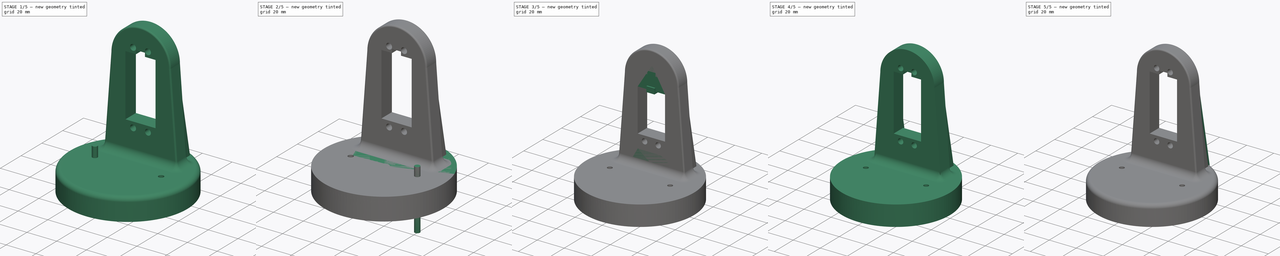
[diagram: build sequence overview — one tinted view per stage of 5, left to right]
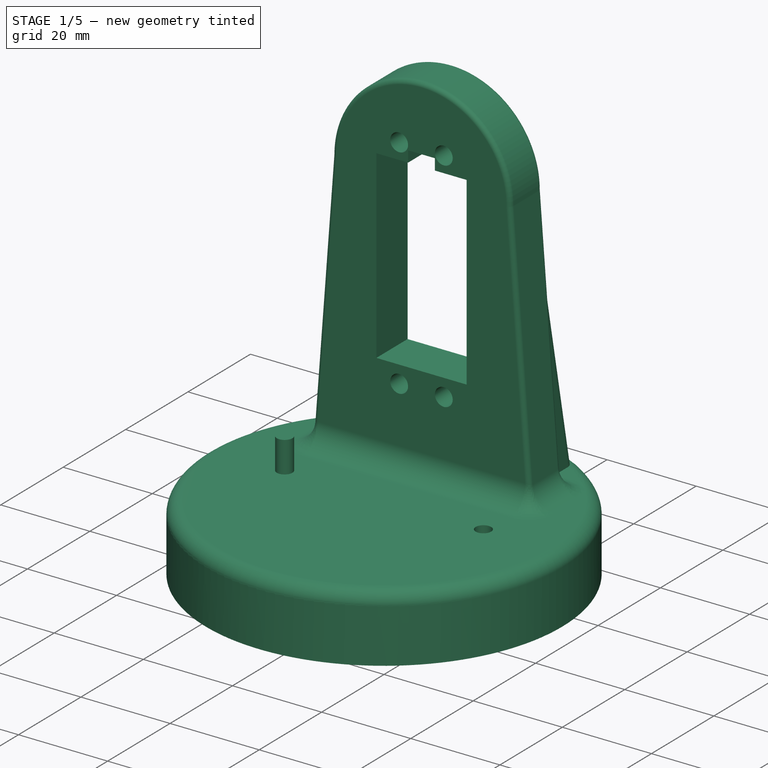
[diagram: stage 1 of 5 — iso view after this stage's code; geometry added in this stage tinted green]
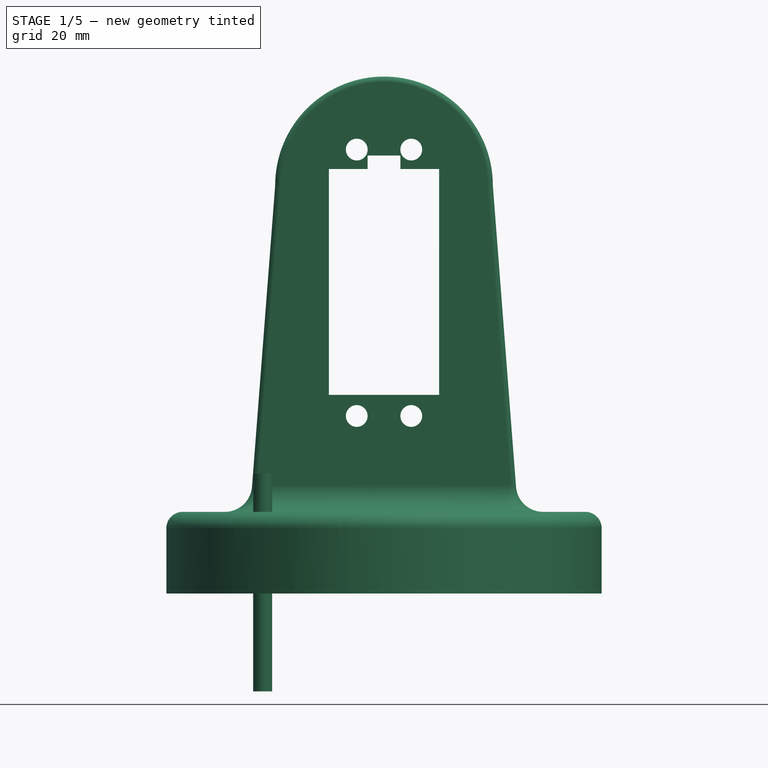
[diagram: stage 1 of 5 — front view after this stage's code; geometry added in this stage tinted green]
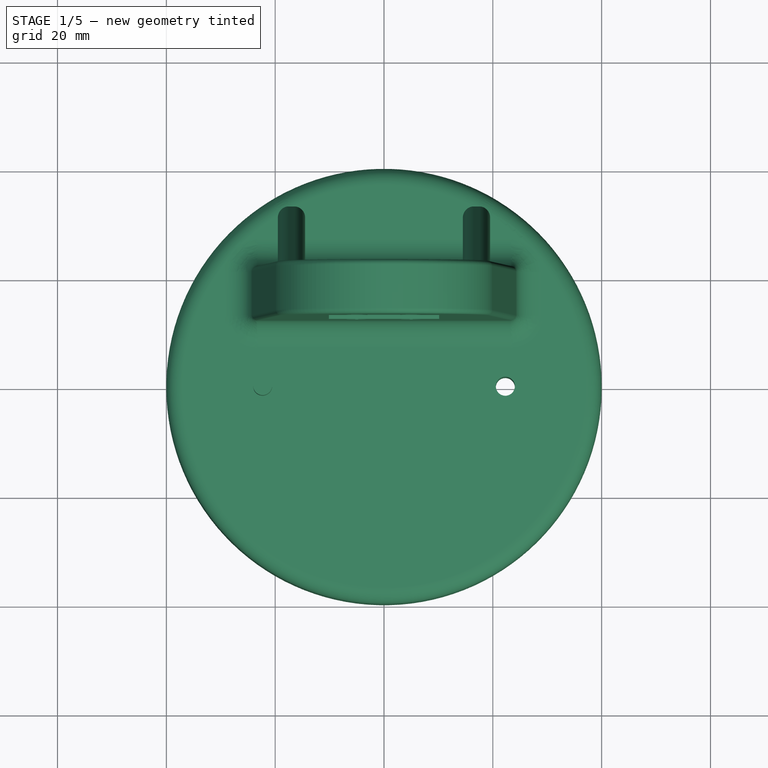
[diagram: stage 1 of 5 — top view after this stage's code; geometry added in this stage tinted green]
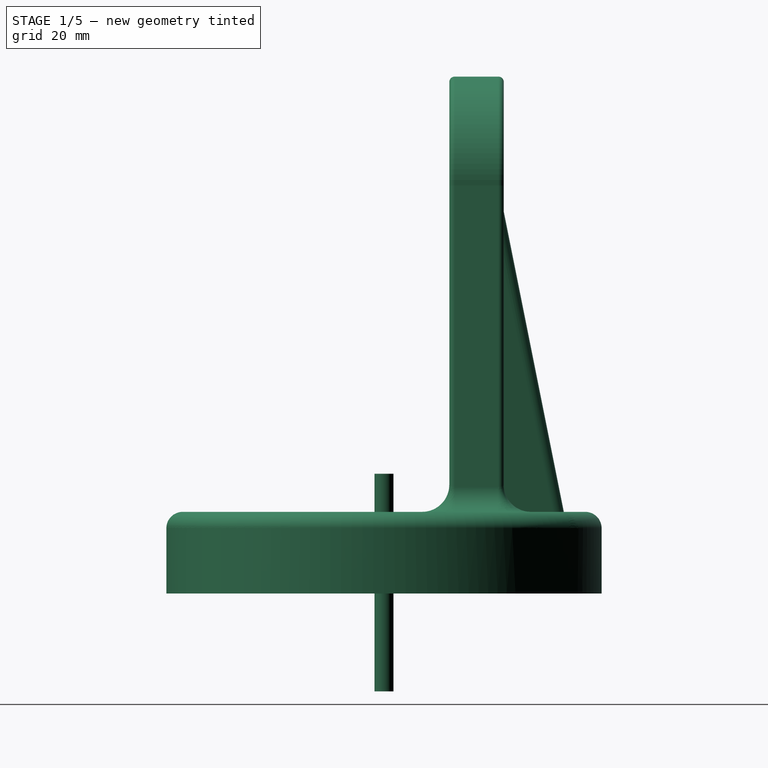
[diagram: stage 1 of 5 — right view after this stage's code; geometry added in this stage tinted green]
FCSTD DOCUMENT  (FreeCAD 0.16R6700 (Git))
Label: preHombro8
License: CreativeCommons Attribution-ShareAlike
LicenseURL: http://creativecommons.org/licenses/by-sa/4.0/
objects: Part::Cut×10, Part::Feature×9, Part::Cylinder×6, Part::MultiFuse×5, Part::Fillet×5, Part::Prism×2, Sketcher::SketchObject×2, PartDesign::Pad×2, Part::Box×2, App::DocumentObjectGroup×1
note: 45 computed .brp shape members not serialized (recipe doc carries the construction recipe); baked Part::Feature solids carry a one-line shape summary decoded from their .brp

FEATURE [Part::Cylinder] Cylinder003  label="Cilindro001"
  Angle = 360
  Height = 40
  Placement = pos=(-22.3,0,-18) rot=(0,0,1;0rad)
  Radius = 1.75
FEATURE [Part::Cylinder] Cylinder005  label="Cilindro003"
  Angle = 360
  Height = 3
  Placement = pos=(0,0,12) rot=(0,0,1;0rad)
  Radius = 10
FEATURE [Part::Feature] Fillet004001  label="csHombro6"
  shape: bbox 86.59 x 86.59 x 96.65 mm, 101 faces (baked)
FEATURE [Part::Cylinder] Cylinder006  label="Vastago001"
  Angle = 360
  Height = 12
  Placement = pos=(0,0,-12) rot=(0,0,1;0rad)
  Radius = 4.15
FEATURE [Part::Prism] Prism001  label="cabezaTuerca001"
  Circumradius = 7.2
  Height = 4.2
  Placement = pos=(-1e-11,0,-12) rot=(0,0,1;0rad)
  Polygon = 6
FEATURE [Part::MultiFuse] Fusion004  label="TaladroTuercaM8"
  Placement = pos=(0,0,11.8) rot=(0,0,1;0rad)
  Shapes = -> [Cylinder006,Prism001]
FEATURE [Part::Feature] Fillet004002  label="hombroV003"
  shape: bbox 86.59 x 86.59 x 96.65 mm, 101 faces (baked)
FEATURE [Part::Cut] Cut010  label="Hombro8"
  Base = -> Fillet004002
  Tool = -> Fusion004
FEATURE [Part::Feature] Cut010001  label="csHombr8"
  shape: bbox 86.59 x 86.59 x 96.65 mm, 103 faces (baked)
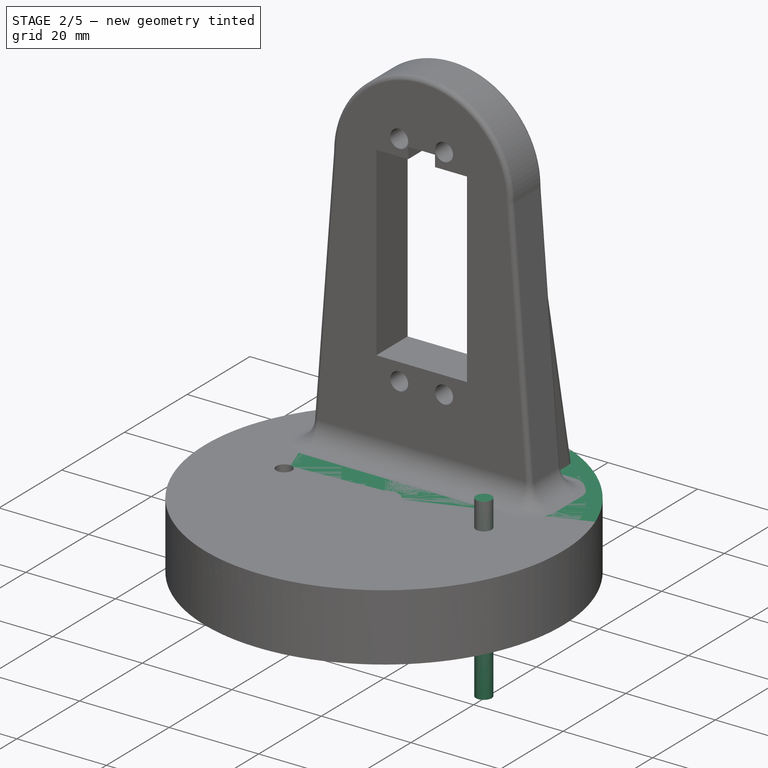
[diagram: stage 2 of 5 — iso view after this stage's code; geometry added in this stage tinted green]
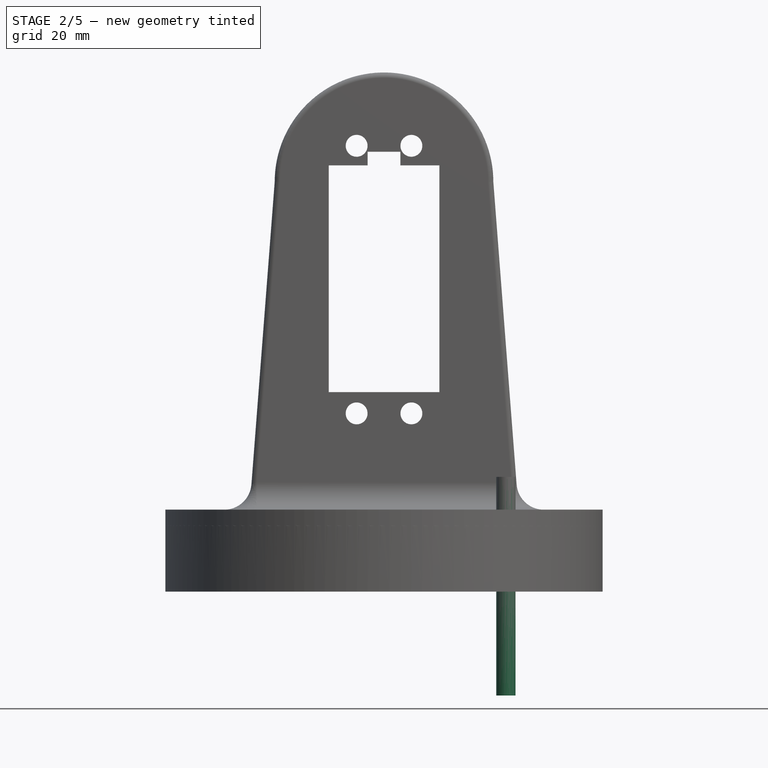
[diagram: stage 2 of 5 — front view after this stage's code; geometry added in this stage tinted green]
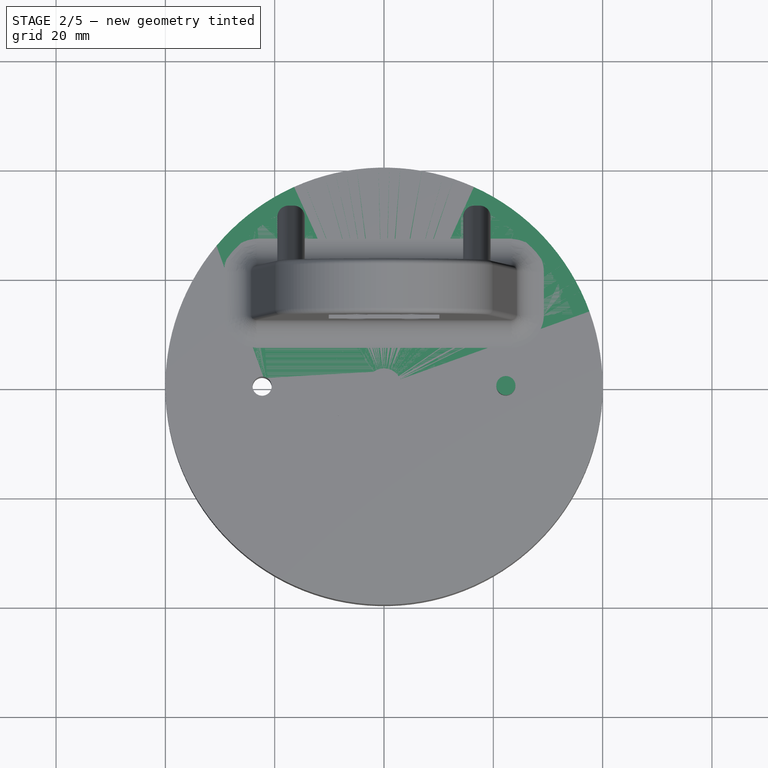
[diagram: stage 2 of 5 — top view after this stage's code; geometry added in this stage tinted green]
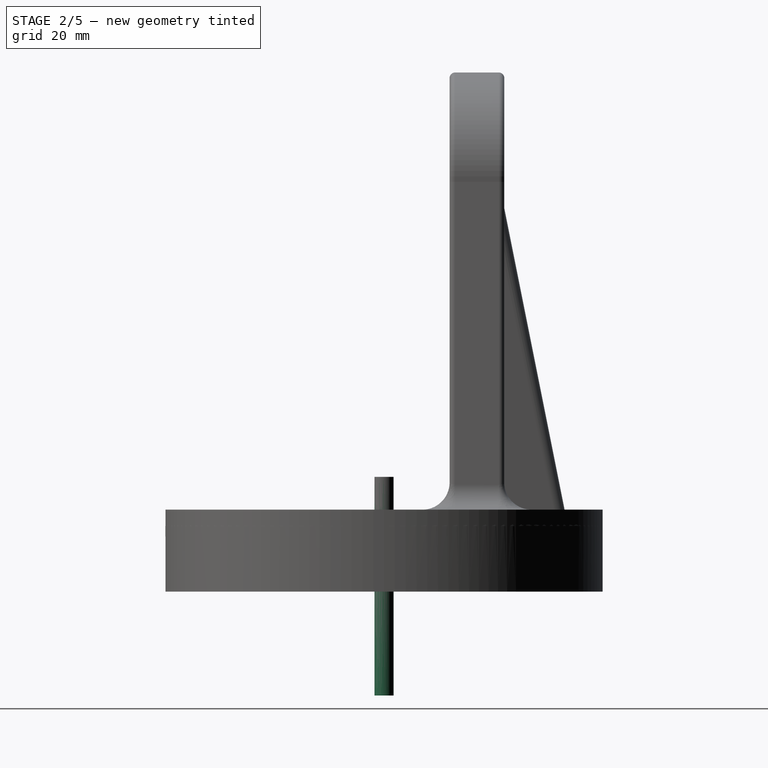
[diagram: stage 2 of 5 — right view after this stage's code; geometry added in this stage tinted green]
FEATURE [Part::Cylinder] Cylinder  label="Cilindro"
  Angle = 360
  Height = 15
  Radius = 40
FEATURE [Part::Cylinder] Cylinder002  label="Vastago"
  Angle = 360
  Height = 40
  Placement = pos=(0,0,-12) rot=(0,0,1;0rad)
  Radius = 3.25
FEATURE [Part::Prism] Prism  label="cabezaTuerca"
  Circumradius = 5.75
  Height = 3.5
  Placement = pos=(-1e-11,0,-12) rot=(0,0,1;0rad)
  Polygon = 6
FEATURE [Part::MultiFuse] Fusion  label="TaladroTuercaM6"
  Placement = pos=(0,0,11.8) rot=(0,0,1;0rad)
  Shapes = -> [Cylinder002,Prism]
FEATURE [Part::Cut] Cut
  Base = -> Cylinder
  Tool = -> Fusion
FEATURE [Part::Cylinder] Cylinder004  label="Cilindro002"
  Angle = 360
  Height = 40
  Placement = pos=(22.3,0,-19) rot=(0,0,1;0rad)
  Radius = 1.75
FEATURE [Part::Cut] Cut001
  Base = -> Cut
  Tool = -> Cylinder003
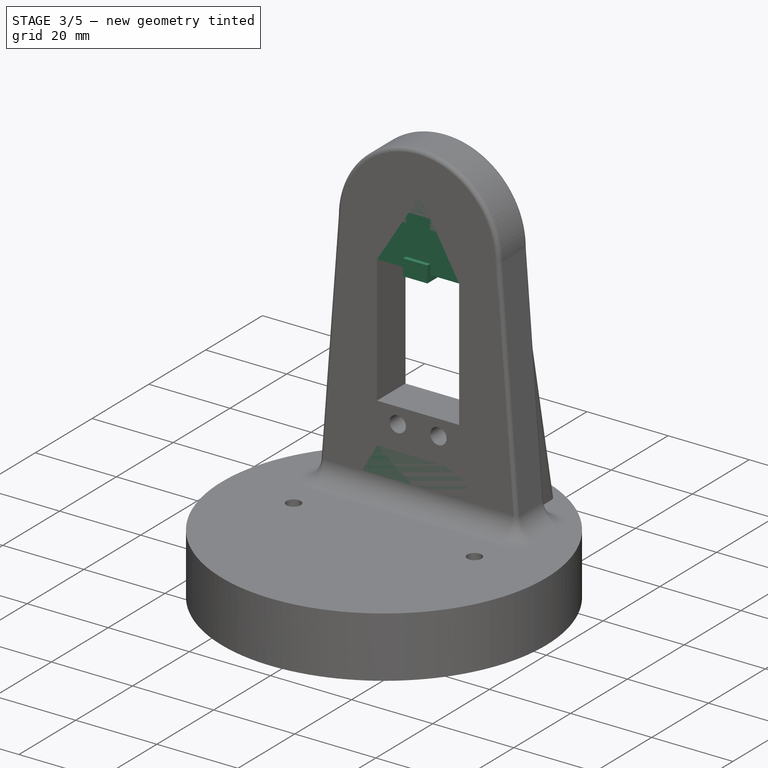
[diagram: stage 3 of 5 — iso view after this stage's code; geometry added in this stage tinted green]
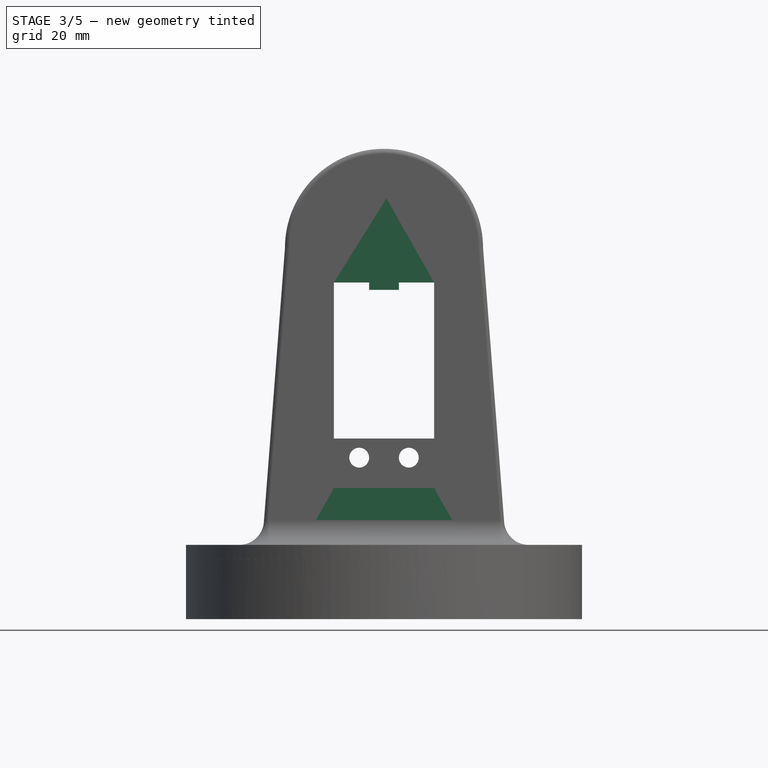
[diagram: stage 3 of 5 — front view after this stage's code; geometry added in this stage tinted green]
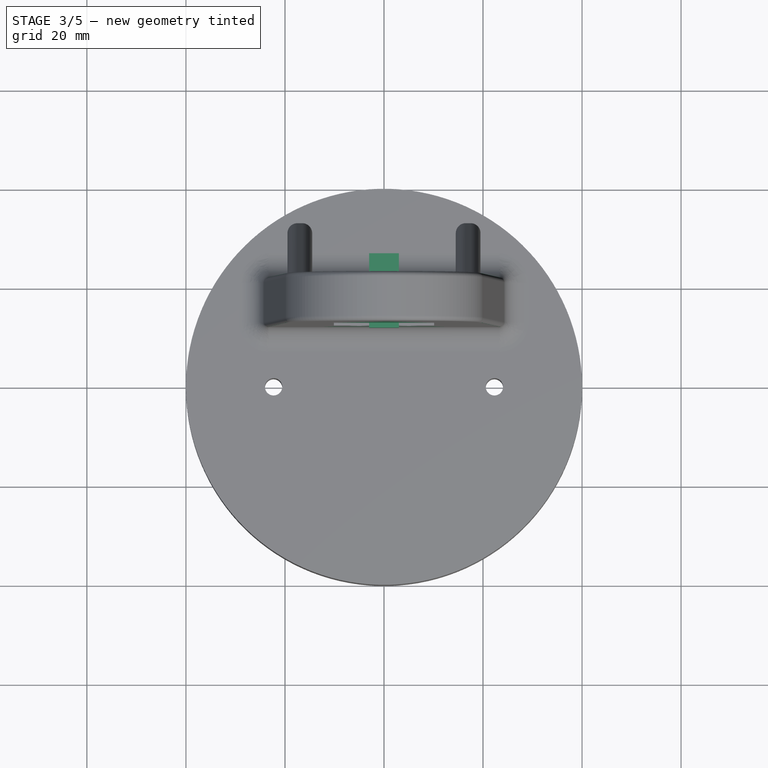
[diagram: stage 3 of 5 — top view after this stage's code; geometry added in this stage tinted green]
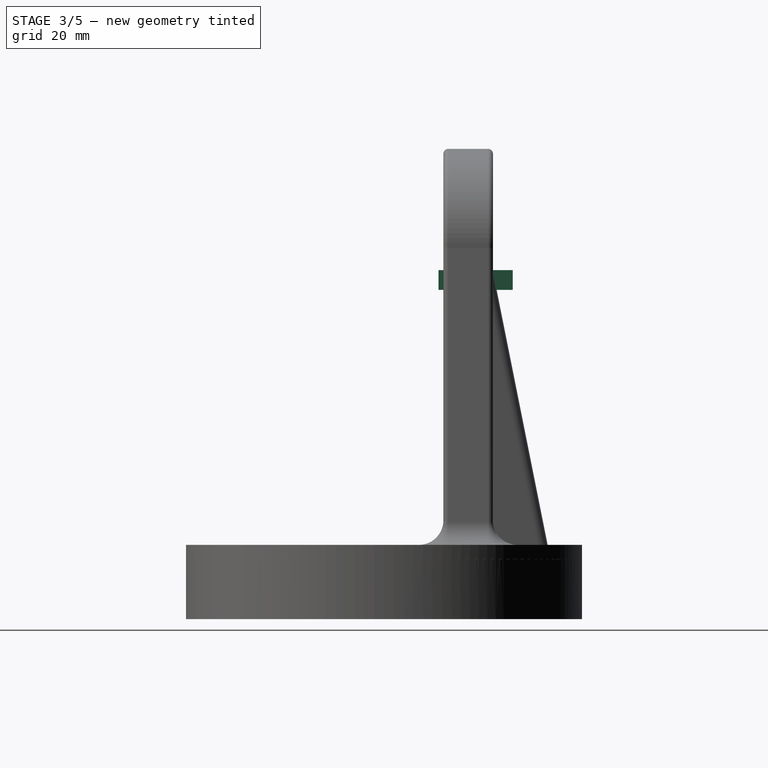
[diagram: stage 3 of 5 — right view after this stage's code; geometry added in this stage tinted green]
FEATURE [Part::Cut] Cut002
  Base = -> Cut001
  Tool = -> Cylinder004
FEATURE [Sketcher::SketchObject] Sketch
  Placement = pos=(0,22,0) rot=(1,0,0;1.5708rad)
  sketch-geometry (4):
    g0: LineSegment StartX=-25 StartY=0 StartZ=0 EndX=25 EndY=0 EndZ=0
    g1: LineSegment StartX=25 StartY=0 StartZ=0 EndX=20 EndY=65 EndZ=0
    g2: LineSegment StartX=-20 StartY=65 StartZ=0 EndX=-25 EndY=0 EndZ=0
    g3: ArcOfCircle CenterX=0 CenterY=65 CenterZ=0 NormalX=0 NormalY=0 NormalZ=1 Radius=20 StartAngle=0 EndAngle=3.14159
  constraints (15):
    c: Horizontal(g0)
    c: Coincident(g0,g1)
    c: Coincident(g2,g0)
    c: PointOnObject(g3,g-2)
    c: PointOnObject(g2,g3)
    c: Coincident(g3,g1)
    c: Coincident(g3,g2)
    c: DistanceX(g0,g0) = 50
    c: Radius(g3) = 20
    c: DistanceY(g0,g3) = 65
    c: Symmetric(g2,g1,g-2)
    c: Coincident(g2,g3)
    c: DistanceY(g0,g2) = 65
    c: PointOnObject(g0,g-1)
    c: Symmetric(g0,g0,g-2)
FEATURE [PartDesign::Pad] Pad
  Length = 10
  Length2 = 100
  Placement = pos=(0,22,0) rot=(1,0,0;1.5708rad)
  Sketch = -> Sketch
  Type = 0
FEATURE [Part::Box] Box001  label="Cubo001"
  Height = 41.5
  Length = 20.25
  Placement = pos=(-10.12,11,26.5) rot=(0,0,1;0rad)
  Width = 30
FEATURE [Part::Cut] Cut003
  Base = -> Pad
  Tool = -> Box001
FEATURE [Part::Box] Box002  label="Cubo002"
  Height = 4
  Length = 6
  Placement = pos=(-3,11,66.5) rot=(0,0,1;0rad)
  Width = 15
FEATURE [Part::MultiFuse] Fusion002
  Shapes = -> [Cut002,Cylinder005]
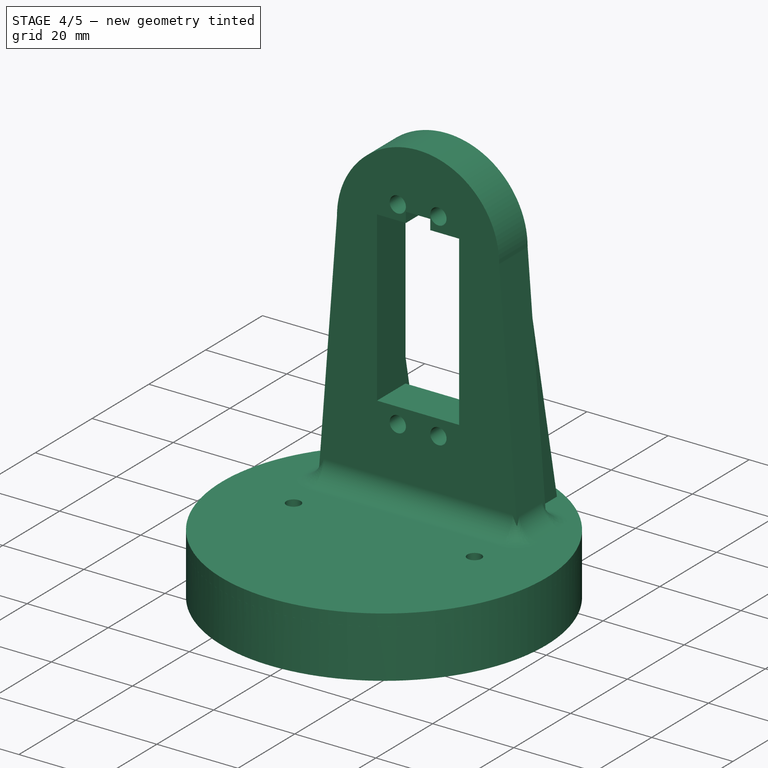
[diagram: stage 4 of 5 — iso view after this stage's code; geometry added in this stage tinted green]
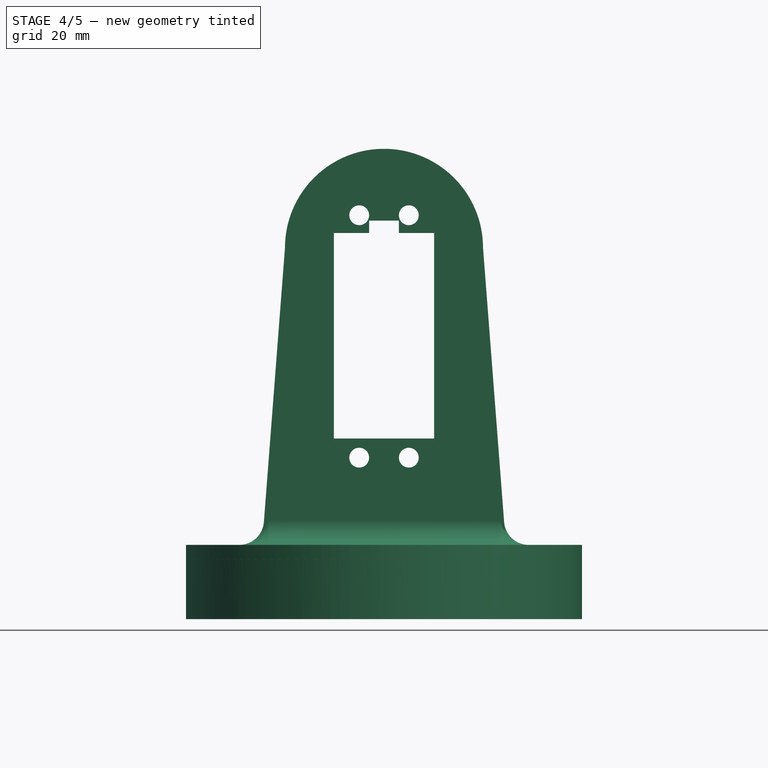
[diagram: stage 4 of 5 — front view after this stage's code; geometry added in this stage tinted green]
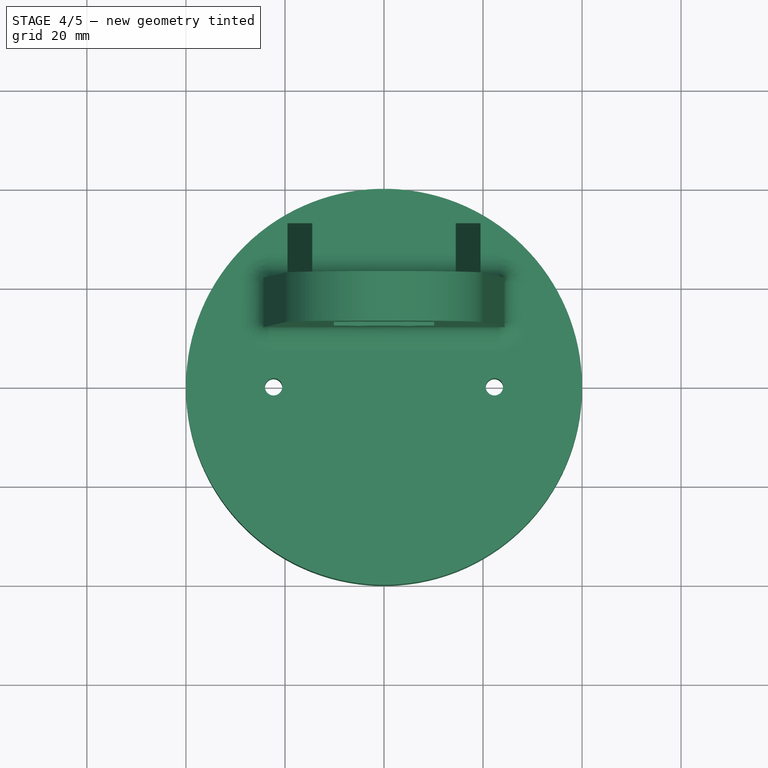
[diagram: stage 4 of 5 — top view after this stage's code; geometry added in this stage tinted green]
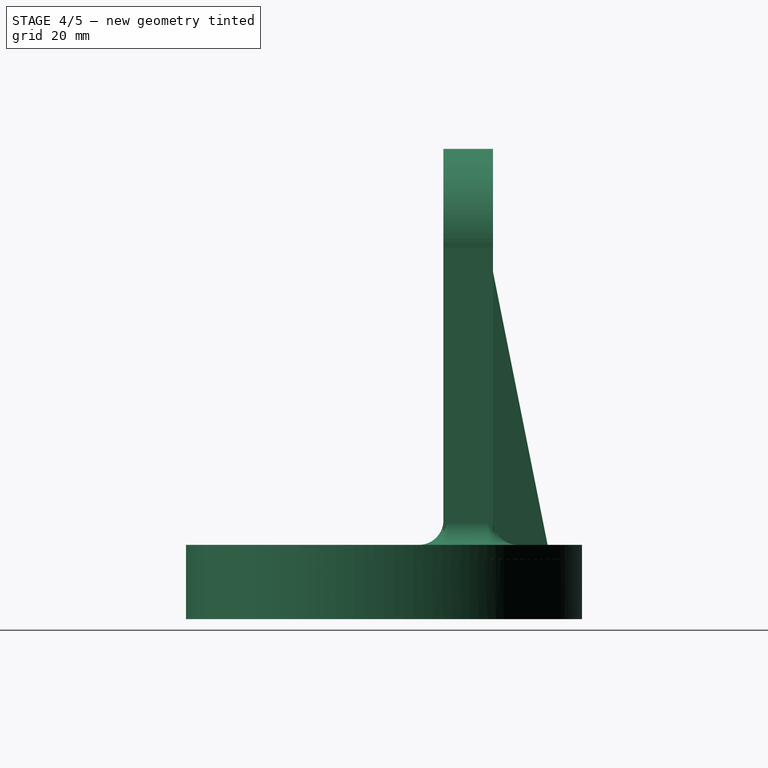
[diagram: stage 4 of 5 — right view after this stage's code; geometry added in this stage tinted green]
FEATURE [Part::Feature] Clone005001  label=" taladroTuercaM004"
  Placement = pos=(5.01,22.2,81.58) rot=(1,0,0;1.5708rad)
  shape: bbox 6.7 x 32.25 x 5.802 mm, 10 faces (baked)
FEATURE [Part::Feature] Clone005001001  label=" taladroTuercaM005"
  Placement = pos=(5.01,22.2,32.62) rot=(1,0,0;1.5708rad)
  shape: bbox 6.7 x 32.25 x 5.802 mm, 10 faces (baked)
FEATURE [Part::Feature] Clone005001002  label=" taladroTuercaM006"
  Placement = pos=(-5.01,22.2,32.62) rot=(1,0,0;1.5708rad)
  shape: bbox 6.7 x 32.25 x 5.802 mm, 10 faces (baked)
FEATURE [Part::Feature] Clone005001003  label=" taladroTuercaM007"
  Placement = pos=(-5.01,22.2,81.58) rot=(1,0,0;1.5708rad)
  shape: bbox 6.7 x 32.25 x 5.802 mm, 10 faces (baked)
FEATURE [Part::Cut] Cut005
  Base = -> Cut003
  Tool = -> Clone005001
FEATURE [Part::Cut] Cut006
  Base = -> Cut005
  Tool = -> Clone005001001
FEATURE [Part::Cut] Cut007
  Base = -> Cut006
  Tool = -> Clone005001002
FEATURE [Part::Cut] Cut008
  Base = -> Cut007
  Tool = -> Clone005001003
FEATURE [Part::Cut] Cut009
  Base = -> Cut008
  Placement = pos=(0,0,10) rot=(0,0,1;0rad)
  Tool = -> Box002
FEATURE [App::DocumentObjectGroup] Grupo  label="GR_Aux"
  Group = -> [Pad001]
FEATURE [Part::Feature] Pad001001  label="Pad002"
  Placement = pos=(14.5,-2,0) rot=(0.57735,0.57735,0.57735;2.0944rad)
  shape: bbox 5 x 12 x 60 mm, 5 faces (baked)
FEATURE [Part::Feature] Pad001002  label="Pad003"
  Placement = pos=(-19.5,-2,0) rot=(0.57735,0.57735,0.57735;2.0944rad)
  shape: bbox 5 x 12 x 60 mm, 5 faces (baked)
FEATURE [Part::MultiFuse] Fusion001
  Shapes = -> [Cut009,Pad001001,Pad001002]
FEATURE [Part::MultiFuse] Fusion003
  Shapes = -> [Fusion002,Fusion001]
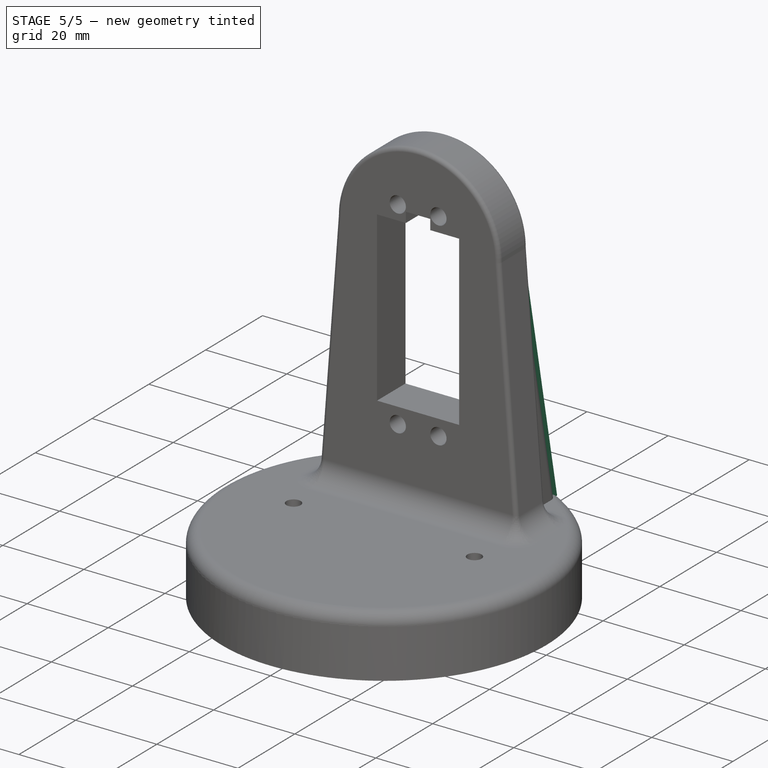
[diagram: stage 5 of 5 — iso view after this stage's code; geometry added in this stage tinted green]
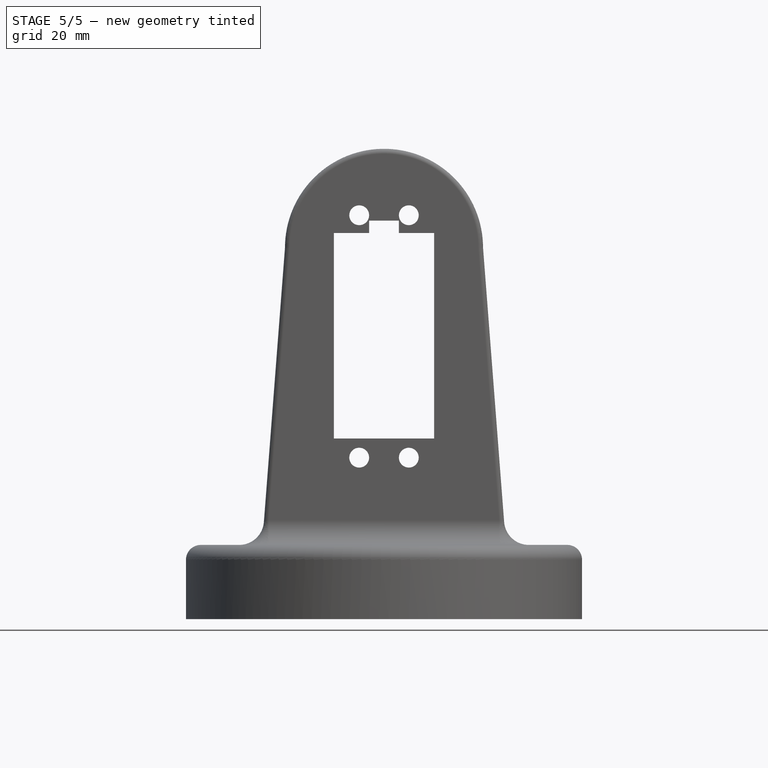
[diagram: stage 5 of 5 — front view after this stage's code; geometry added in this stage tinted green]
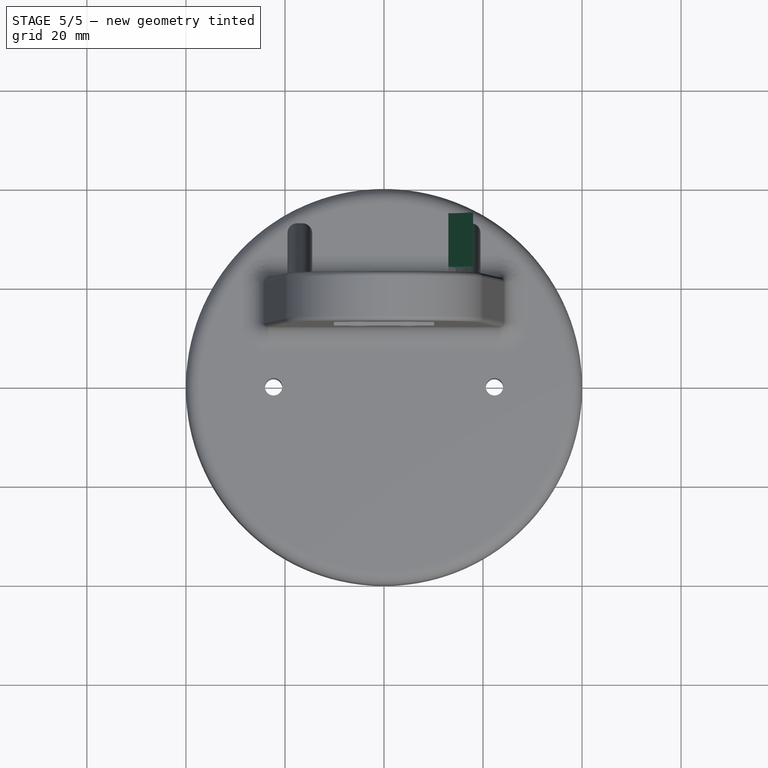
[diagram: stage 5 of 5 — top view after this stage's code; geometry added in this stage tinted green]
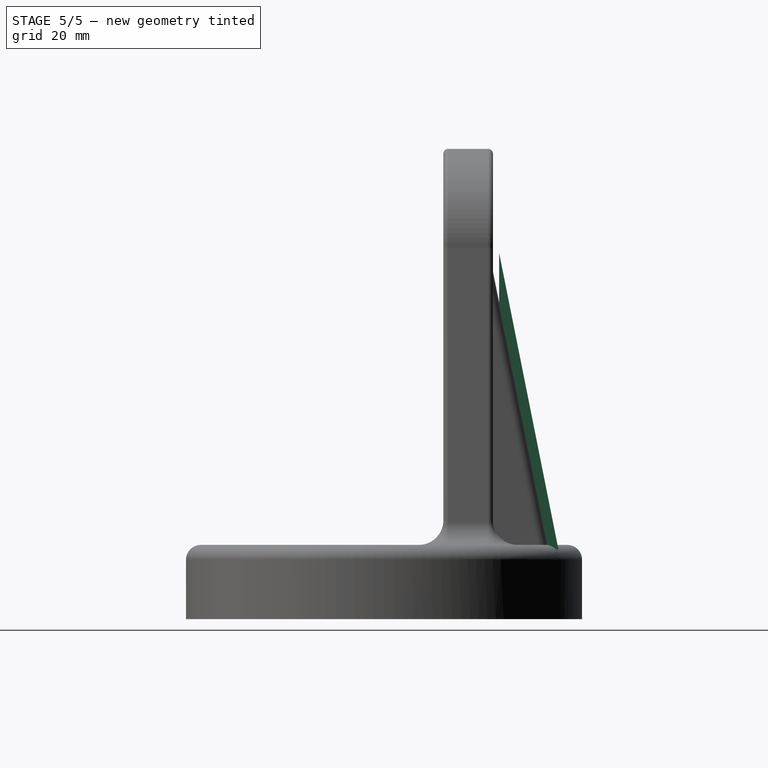
[diagram: stage 5 of 5 — right view after this stage's code; geometry added in this stage tinted green]
FEATURE [Sketcher::SketchObject] Sketch001
  Placement = pos=(13,0,0) rot=(0.57735,0.57735,0.57735;2.0944rad)
  sketch-geometry (3):
    g0: LineSegment StartX=23.2376 StartY=74.0132 StartZ=0 EndX=23.2376 EndY=14.0132 EndZ=0
    g1: LineSegment StartX=23.2376 StartY=14.0132 StartZ=0 EndX=35.2376 EndY=14.0132 EndZ=0
    g2: LineSegment StartX=35.2376 StartY=14.0132 StartZ=0 EndX=23.2376 EndY=74.0132 EndZ=0
  constraints (7):
    c: Vertical(g0)
    c: Coincident(g0,g1)
    c: Horizontal(g1)
    c: Coincident(g1,g2)
    c: Coincident(g2,g0)
    c: DistanceY(g0,g0) = 60
    c: DistanceX(g1,g1) = 12
FEATURE [PartDesign::Pad] Pad001
  Length = 5
  Length2 = 100
  Placement = pos=(13,0,0) rot=(0.57735,0.57735,0.57735;2.0944rad)
  Sketch = -> Sketch001
  Type = 0
FEATURE [Part::Fillet] Fillet
  Base = -> Fusion003
  Edges = 4 edges r=2: [Edge71,Edge72,Edge73,Edge74]
FEATURE [Part::Fillet] Fillet001
  Base = -> Fillet
  Edges = 1 edges r=3: [Edge17]
FEATURE [Part::Fillet] Fillet002
  Base = -> Fillet001
  Edges = 6 edges r=1: [Edge27,Edge29,Edge31,Edge74,Edge75,Edge76]
FEATURE [Part::Fillet] Fillet003
  Base = -> Fillet002
  Edges = 1 edges r=5: [Edge8]
FEATURE [Part::Fillet] Fillet004  label="hombroV2"
  Base = -> Fillet003
  Edges = 1 edges r=5: [Edge31]
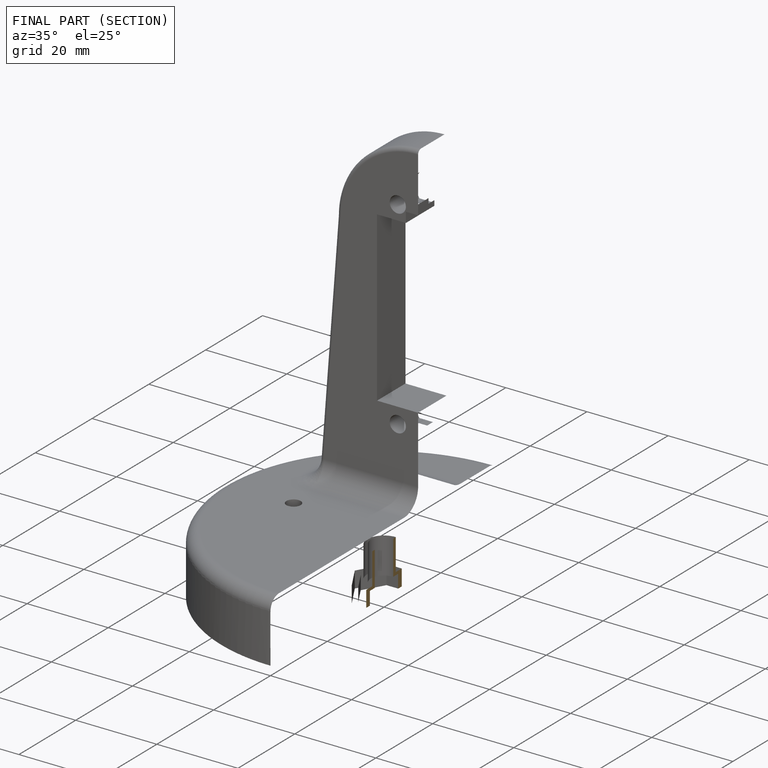
[diagram: finished part — half-section view (interior)]
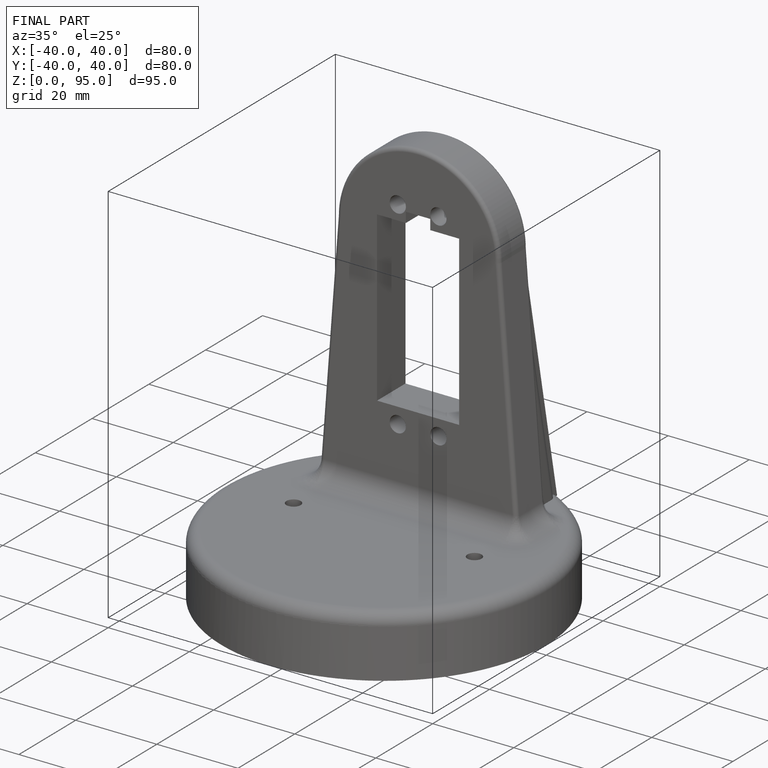
[diagram: finished part — iso view with bounding-box wireframe]
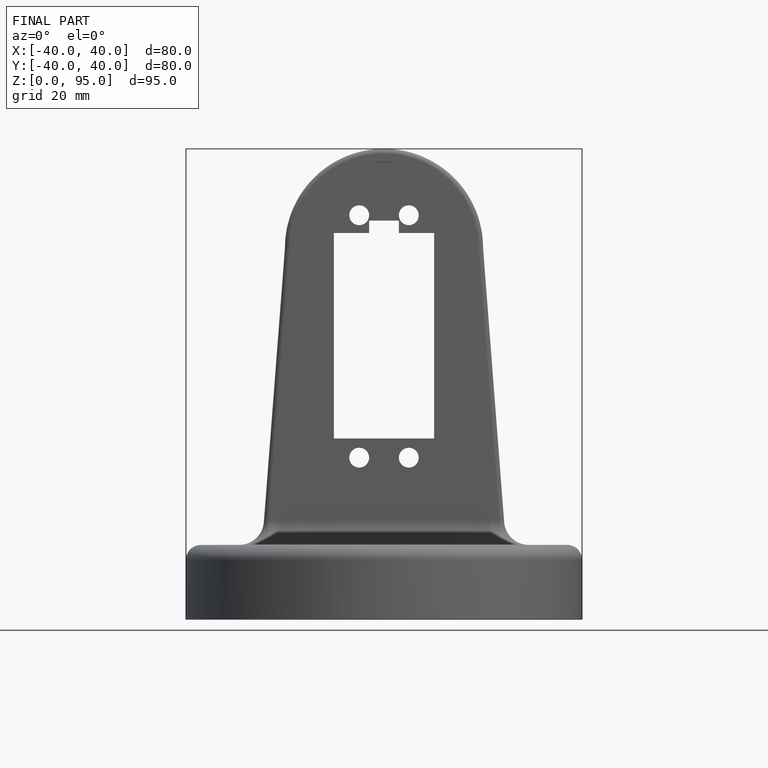
[diagram: finished part — front view with bounding-box wireframe]
